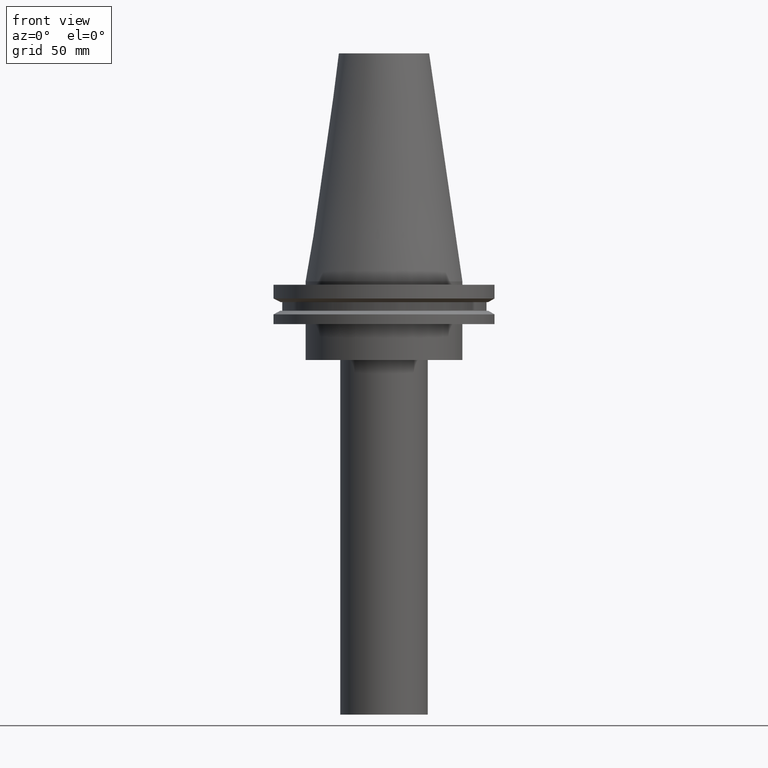
[diagram: clean part render]
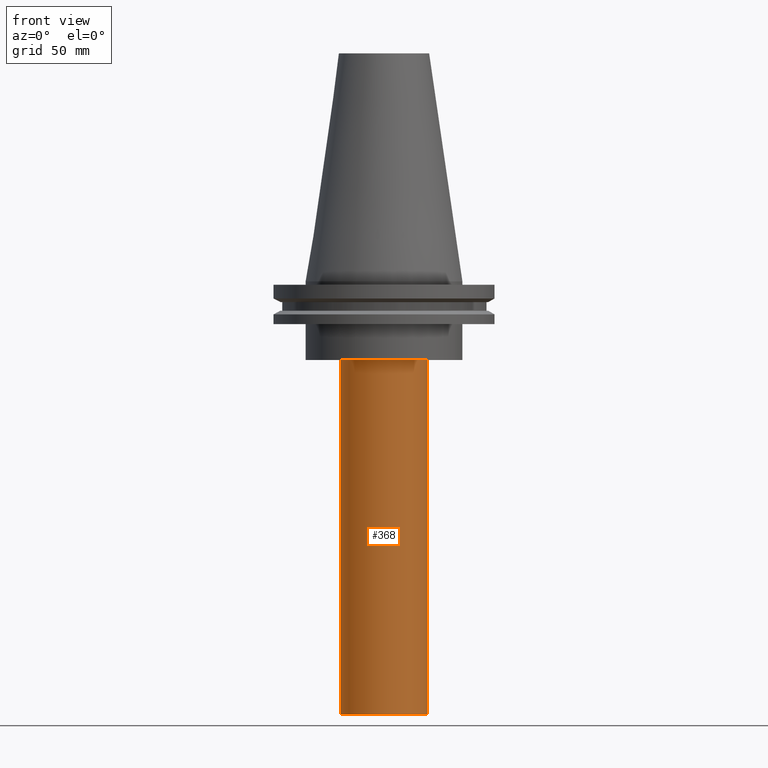
[diagram: same view with one face highlighted and labeled with its STEP entity id]
A machine part, front view. The second image highlights one B-rep face of the part: STEP entity #368.
In plain terms, the highlighted cylindrical surface (bore or boss wall) has radius 19.5 mm, axis along (-0, -0, 1).
Its self-contained STEP definition (entity closure, byte-faithful):
#21 = AXIS2_PLACEMENT_3D ( 'NONE', #169, #287, #273 ) ;
#22 = VERTEX_POINT ( 'NONE', #291 ) ;
#26 = CYLINDRICAL_SURFACE ( 'NONE', #338, 19.50000000000000000 ) ;
#61 = DIRECTION ( 'NONE',  ( -0.000000000000000000, -0.000000000000000000, 1.000000000000000000 ) ) ;
#64 = EDGE_CURVE ( 'NONE', #202, #202, #197, .T. ) ;
#109 = EDGE_CURVE ( 'NONE', #22, #22, #213, .T. ) ;
#111 = ORIENTED_EDGE ( 'NONE', *, *, #64, .F. ) ;
#123 = FACE_OUTER_BOUND ( 'NONE', #337, .T. ) ;
#153 = DIRECTION ( 'NONE',  ( 1.000000000000000000, 0.000000000000000000, 0.000000000000000000 ) ) ;
#155 = CARTESIAN_POINT ( 'NONE',  ( 0.000000000000000000, 0.000000000000000000, -193.0000000000000000 ) ) ;
#169 = CARTESIAN_POINT ( 'NONE',  ( 0.000000000000000000, 0.000000000000000000, -35.00000000000000000 ) ) ;
#173 = CARTESIAN_POINT ( 'NONE',  ( 19.50000000000000000, 0.000000000000000000, -35.00000000000000000 ) ) ;
#174 = FACE_OUTER_BOUND ( 'NONE', #246, .T. ) ;
#181 = AXIS2_PLACEMENT_3D ( 'NONE', #155, #61, #309 ) ;
#197 = CIRCLE ( 'NONE', #21, 19.50000000000000000 ) ;
#202 = VERTEX_POINT ( 'NONE', #173 ) ;
#213 = CIRCLE ( 'NONE', #181, 19.50000000000000000 ) ;
#246 = EDGE_LOOP ( 'NONE', ( #250 ) ) ;
#250 = ORIENTED_EDGE ( 'NONE', *, *, #109, .T. ) ;
#263 = CARTESIAN_POINT ( 'NONE',  ( 0.000000000000000000, 0.000000000000000000, 0.000000000000000000 ) ) ;
#273 = DIRECTION ( 'NONE',  ( 1.000000000000000000, 0.000000000000000000, 0.000000000000000000 ) ) ;
#287 = DIRECTION ( 'NONE',  ( -0.000000000000000000, -0.000000000000000000, 1.000000000000000000 ) ) ;
#291 = CARTESIAN_POINT ( 'NONE',  ( 19.50000000000000000, 0.000000000000000000, -193.0000000000000000 ) ) ;
#309 = DIRECTION ( 'NONE',  ( 1.000000000000000000, 0.000000000000000000, 0.000000000000000000 ) ) ;
#337 = EDGE_LOOP ( 'NONE', ( #111 ) ) ;
#338 = AXIS2_PLACEMENT_3D ( 'NONE', #263, #360, #153 ) ;
#360 = DIRECTION ( 'NONE',  ( -0.000000000000000000, -0.000000000000000000, 1.000000000000000000 ) ) ;
#368 = ADVANCED_FACE ( 'NONE', ( #123, #174 ), #26, .T. ) ;